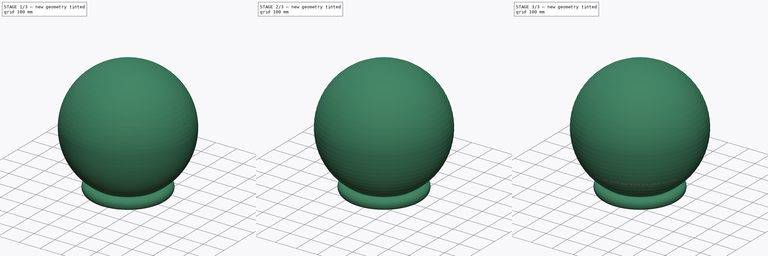
[diagram: build sequence overview — one tinted view per stage of 3, left to right]
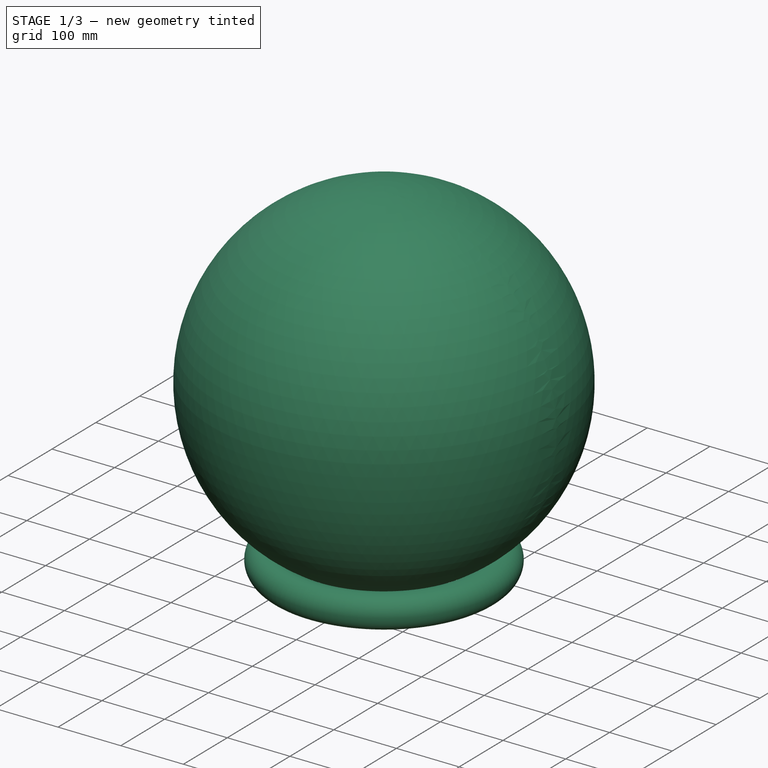
[diagram: stage 1 of 3 — iso view after this stage's code; geometry added in this stage tinted green]
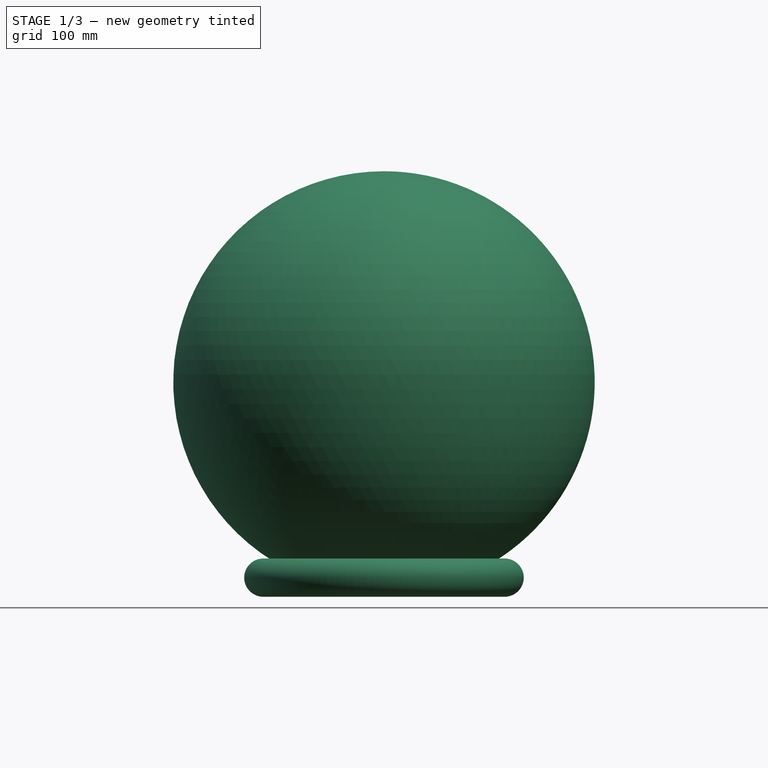
[diagram: stage 1 of 3 — front view after this stage's code; geometry added in this stage tinted green]
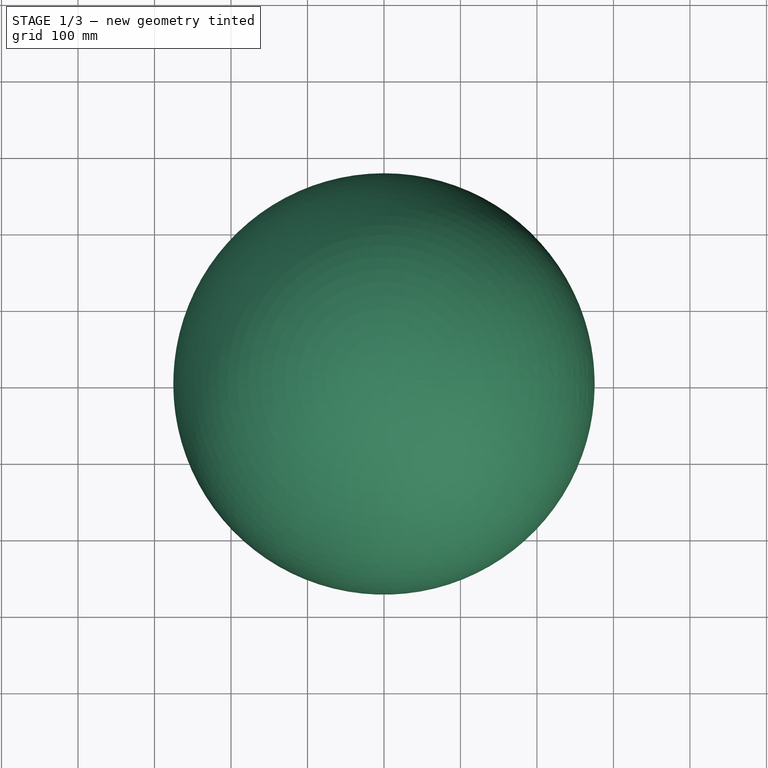
[diagram: stage 1 of 3 — top view after this stage's code; geometry added in this stage tinted green]
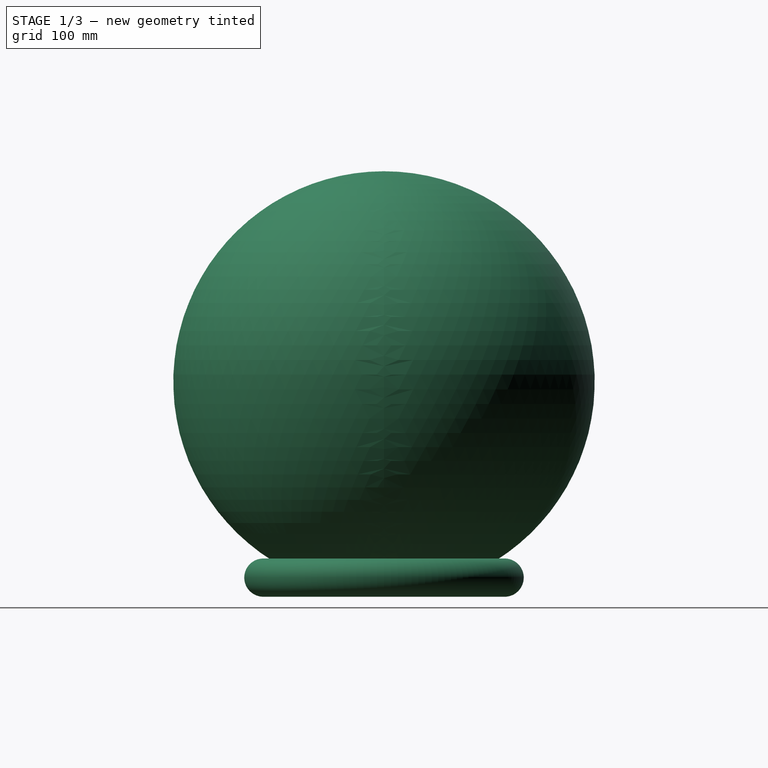
[diagram: stage 1 of 3 — right view after this stage's code; geometry added in this stage tinted green]
FCSTD DOCUMENT  (FreeCAD 1.0R39109 (Git))
Label: balanceball
License: All rights reserved
LicenseURL: https://en.wikipedia.org/wiki/All_rights_reserved
objects: Sketcher::SketchObject×4, PartDesign::Body×3, PartDesign::AdditiveSphere×2, PartDesign::Plane×2, App::Part×2, PartDesign::Pad×1, Part::MultiCommon×1, PartDesign::ShapeBinder×1, PartDesign::AdditivePipe×1, Part::MultiFuse×1, Part::FeaturePython×1
note: 29 computed .brp shape members not serialized (recipe doc carries the construction recipe); baked Part::Feature solids carry a one-line shape summary decoded from their .brp

FEATURE [PartDesign::Body] Body
  AllowCompound = false
  Group = -> [Sphere,Sketch,Pad]
  Origin = -> Origin
  Tip = -> Pad
FEATURE [PartDesign::AdditiveSphere] Sphere001
  Angle1 = -90
  Angle2 = 90
  Angle3 = 360
  AttacherType = Attacher::AttachEngine3D
  Radius = 275.5
  Refine = true
  Suppressed = false
FEATURE [PartDesign::ShapeBinder] CopyCommon
  TraceSupport = false
FEATURE [Sketcher::SketchObject] Sketch001
  ArcFitTolerance = 1e-06
  AttachmentSupport = -> [XZ_Plane002]
  ExternalGeometry = -> [CopyCommon]
  FullyConstrained = false
  MakeInternals = false
  MapMode = 5
  Placement = pos=(0,0,0) rot=(1,0,0;1.5708rad)
  sketch-geometry (2):
    g0: Circle CenterX=-157.732 CenterY=-255.772 CenterZ=0 NormalX=0 NormalY=0 NormalZ=1 AngleXU=0 Radius=25
    g1: LineSegment StartX=-144.873 StartY=-234.333 StartZ=0 EndX=-157.732 EndY=-255.772 EndZ=0
  constraints (4):
    c: PointOnObject(g-3,g0)
    c: Radius(g0) = 25
    c: Coincident(g1,g-3)
    c: Coincident(g1,g0)
FEATURE [PartDesign::Plane] DatumPlane
  AttachmentSupport = -> [Sketch001]
  Length = 438.471
  MapMode = 1
  Placement = pos=(-157.732,-5.68e-14,-255.772) rot=(0,0,1;0rad)
  ResizeMode = 0
  Width = 438.506
FEATURE [Sketcher::SketchObject] Sketch002
  ArcFitTolerance = 1e-06
  AttachmentSupport = -> [DatumPlane]
  ExternalGeometry = -> [CopyCommon]
  FullyConstrained = true
  MakeInternals = false
  MapMode = 5
  Placement = pos=(-157.732,-5.68e-14,-255.772) rot=(0,0,1;0rad)
  sketch-geometry (1):
    g0: Circle CenterX=157.732 CenterY=4.8e-15 CenterZ=0 NormalX=0 NormalY=0 NormalZ=1 AngleXU=0 Radius=157.732
  constraints (2):
    c: Coincident(g0,g-3)
    c: PointOnObject(g-1,g0)
FEATURE [PartDesign::Plane] DatumPlane001
  AttachmentSupport = -> [Sketch001]
  Length = 372.613
  MapMode = 11
  Placement = pos=(-157.732,-5.68e-14,-255.772) rot=(0.57735,-0.57735,0.57735;2.0944rad)
  ResizeMode = 0
  Width = 432.239
FEATURE [Sketcher::SketchObject] Sketch003
  ArcFitTolerance = 1e-06
  AttachmentSupport = -> [DatumPlane001]
  ExternalGeometry = -> [Sketch001]
  FullyConstrained = false
  MakeInternals = false
  MapMode = 5
  Placement = pos=(-157.732,-5.68e-14,-255.772) rot=(0.57735,-0.57735,0.57735;2.0944rad)
  sketch-geometry (1):
    g0: Circle CenterX=0 CenterY=0 CenterZ=0 NormalX=0 NormalY=0 NormalZ=1 AngleXU=0 Radius=25
  constraints (1):
    c: Coincident(g0,g-1)
FEATURE [PartDesign::AdditivePipe] AdditivePipe
  AuxilleryCurvelinear = true
  AuxillerySpineTangent = false
  Binormal = (0,0,0)
  Mode = 0
  Placement = pos=(-157.732,-5.68e-14,-255.772) rot=(0.57735,-0.57735,0.57735;2.0944rad)
  Profile = -> Sketch003
  Refine = true
  Spine = -> Sketch002
  SpineTangent = false
  Suppressed = false
  Transformation = 0
  Transition = 0
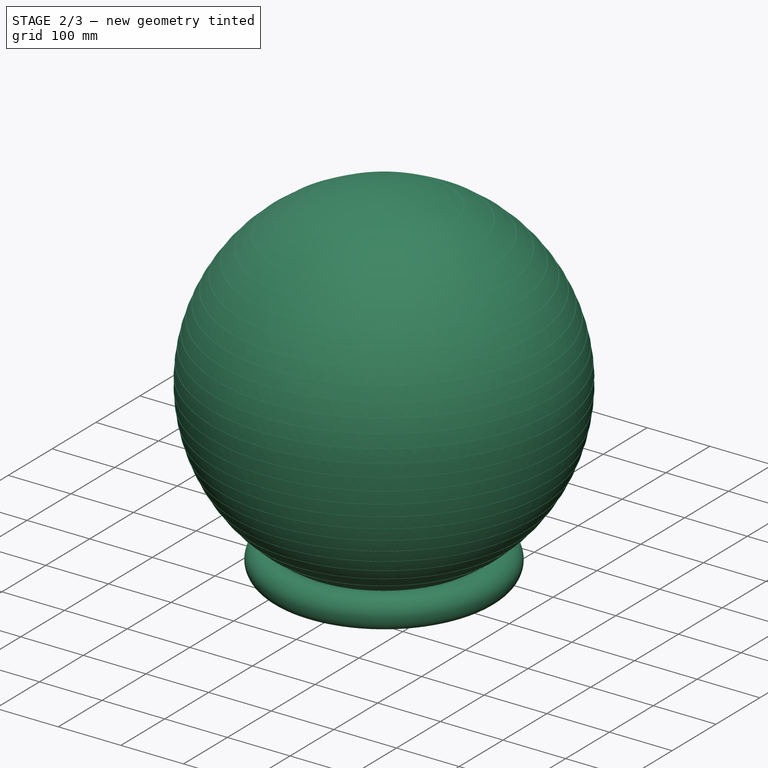
[diagram: stage 2 of 3 — iso view after this stage's code; geometry added in this stage tinted green]
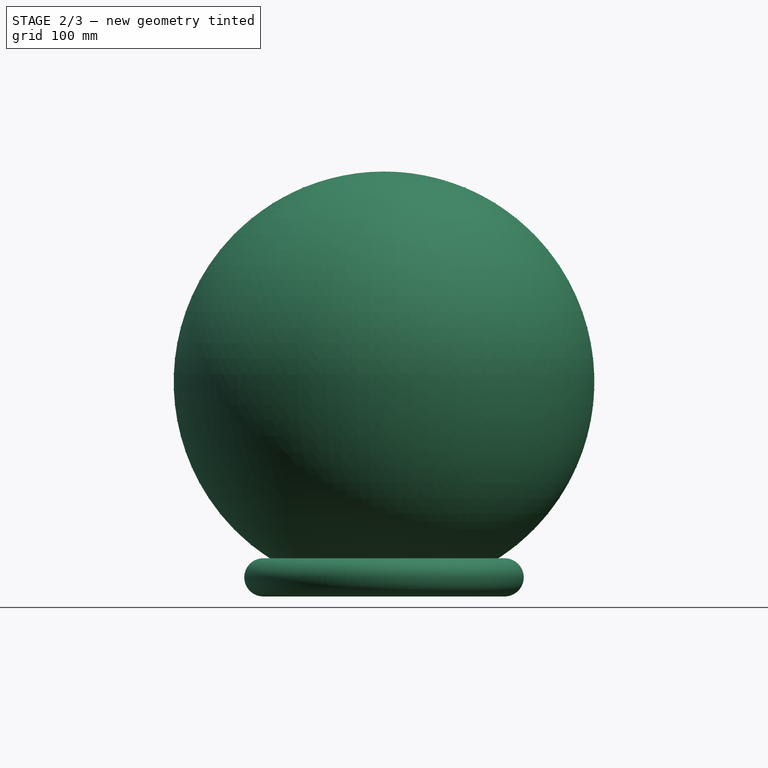
[diagram: stage 2 of 3 — front view after this stage's code; geometry added in this stage tinted green]
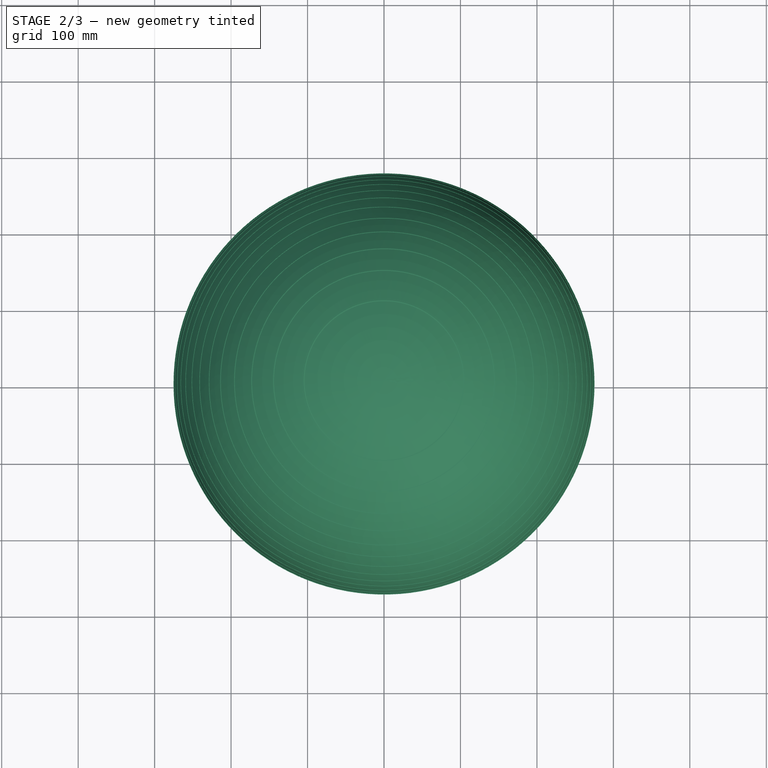
[diagram: stage 2 of 3 — top view after this stage's code; geometry added in this stage tinted green]
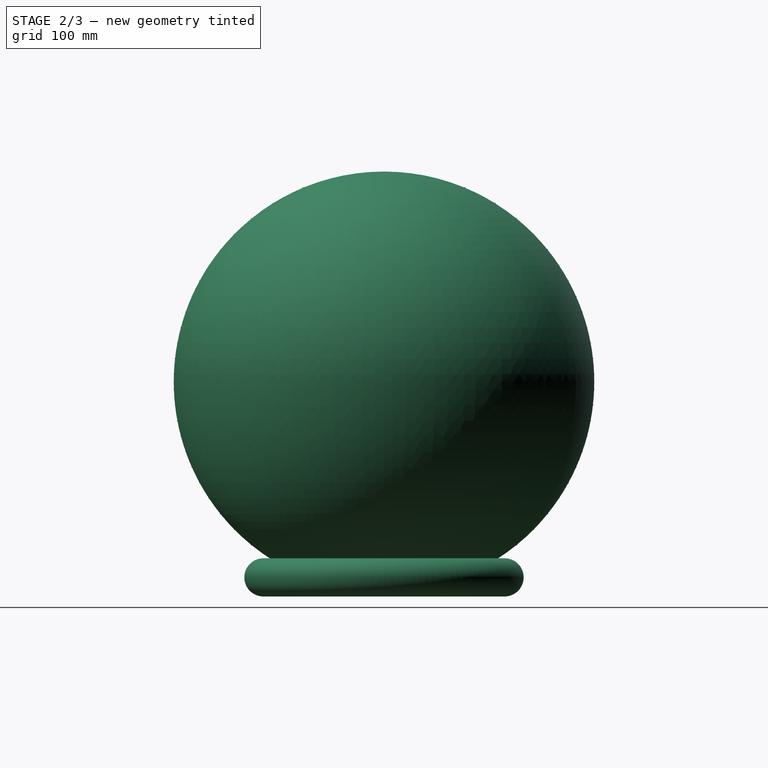
[diagram: stage 2 of 3 — right view after this stage's code; geometry added in this stage tinted green]
FEATURE [PartDesign::AdditiveSphere] Sphere
  Angle1 = -90
  Angle2 = 90
  Angle3 = 360
  AttacherType = Attacher::AttachEngine3D
  Radius = 275
  Refine = true
  Suppressed = false
FEATURE [Sketcher::SketchObject] Sketch
  ArcFitTolerance = 1e-06
  AttachmentSupport = -> [XZ_Plane]
  ExternalGeometry = -> [Sphere]
  FullyConstrained = false
  MakeInternals = false
  MapMode = 5
  Placement = pos=(0,0,0) rot=(1,0,0;1.5708rad)
  sketch-geometry (131):
    g0: LineSegment StartX=-291.447 StartY=9.66667 StartZ=0 EndX=-291.447 EndY=10.6667 EndZ=0
    g1: LineSegment StartX=-291.447 StartY=10.6667 StartZ=0 EndX=291.447 EndY=10.6667 EndZ=0
    g2: LineSegment StartX=291.447 StartY=10.6667 StartZ=0 EndX=291.447 EndY=9.66667 EndZ=0
    g3: LineSegment StartX=291.447 StartY=9.66667 StartZ=0 EndX=-291.447 EndY=9.66667 EndZ=0
    g4: LineSegment StartX=-280.491 StartY=30 StartZ=0 EndX=-280.491 EndY=31 EndZ=0
    g5: LineSegment StartX=-280.491 StartY=31 StartZ=0 EndX=280.491 EndY=31 EndZ=0
    g6: LineSegment StartX=280.491 StartY=31 StartZ=0 EndX=280.491 EndY=30 EndZ=0
    g7: LineSegment StartX=280.491 StartY=30 StartZ=0 EndX=-280.491 EndY=30 EndZ=0
    g8: LineSegment StartX=282.77 StartY=51.3333 StartZ=0 EndX=282.77 EndY=50.3333 EndZ=0
    g9: LineSegment StartX=282.77 StartY=50.3333 StartZ=0 EndX=-282.77 EndY=50.3333 EndZ=0
    g10: LineSegment StartX=-282.77 StartY=50.3333 StartZ=0 EndX=-282.77 EndY=51.3333 EndZ=0
    g11: LineSegment StartX=-282.77 StartY=51.3333 StartZ=0 EndX=282.77 EndY=51.3333 EndZ=0
    g12: LineSegment StartX=-276.996 StartY=70.6667 StartZ=0 EndX=-276.996 EndY=71.6667 EndZ=0
    g13: LineSegment StartX=-276.996 StartY=71.6667 StartZ=0 EndX=276.996 EndY=71.6667 EndZ=0
    g14: LineSegment StartX=276.996 StartY=71.6667 StartZ=0 EndX=276.996 EndY=70.6667 EndZ=0
    g15: LineSegment StartX=276.996 StartY=70.6667 StartZ=0 EndX=-276.996 EndY=70.6667 EndZ=0
    g16: LineSegment StartX=271.883 StartY=91 StartZ=0 EndX=-271.883 EndY=91 EndZ=0
    g17: LineSegment StartX=-271.883 StartY=91 StartZ=0 EndX=-271.883 EndY=92 EndZ=0
    g18: LineSegment StartX=-271.883 StartY=92 StartZ=0 EndX=271.883 EndY=92 EndZ=0
    g19: LineSegment StartX=271.883 StartY=92 StartZ=0 EndX=271.883 EndY=91 EndZ=0
    g20: LineSegment StartX=-264.412 StartY=112.333 StartZ=0 EndX=264.412 EndY=112.333 EndZ=0
    g21: LineSegment StartX=264.412 StartY=112.333 StartZ=0 EndX=264.412 EndY=111.333 EndZ=0
    g22: LineSegment StartX=264.412 StartY=111.333 StartZ=0 EndX=-264.412 EndY=111.333 EndZ=0
    g23: LineSegment StartX=-264.412 StartY=111.333 StartZ=0 EndX=-264.412 EndY=112.333 EndZ=0
    g24: LineSegment StartX=256.154 StartY=132.667 StartZ=0 EndX=256.154 EndY=131.667 EndZ=0
    g25: LineSegment StartX=256.154 StartY=131.667 StartZ=0 EndX=-256.154 EndY=131.667 EndZ=0
    g26: LineSegment StartX=-256.154 StartY=131.667 StartZ=0 EndX=-256.154 EndY=132.667 EndZ=0
    g27: LineSegment StartX=-256.154 StartY=132.667 StartZ=0 EndX=256.154 EndY=132.667 EndZ=0
    g28: LineSegment StartX=-246.008 StartY=153 StartZ=0 EndX=246.008 EndY=153 EndZ=0
    g29: LineSegment StartX=246.008 StartY=153 StartZ=0 EndX=246.008 EndY=152 EndZ=0
    g30: LineSegment StartX=246.008 StartY=152 StartZ=0 EndX=-246.008 EndY=152 EndZ=0
    g31: LineSegment StartX=-246.008 StartY=152 StartZ=0 EndX=-246.008 EndY=153 EndZ=0
    g32: LineSegment StartX=237.302 StartY=173.333 StartZ=0 EndX=237.302 EndY=172.333 EndZ=0
    g33: LineSegment StartX=237.302 StartY=172.333 StartZ=0 EndX=-237.302 EndY=172.333 EndZ=0
    g34: LineSegment StartX=-237.302 StartY=172.333 StartZ=0 EndX=-237.302 EndY=173.333 EndZ=0
    g35: LineSegment StartX=-237.302 StartY=173.333 StartZ=0 EndX=237.302 EndY=173.333 EndZ=0
    g36: LineSegment StartX=-221.839 StartY=192.667 StartZ=0 EndX=-221.839 EndY=193.667 EndZ=0
    g37: LineSegment StartX=-221.839 StartY=193.667 StartZ=0 EndX=221.839 EndY=193.667 EndZ=0
    g38: LineSegment StartX=221.839 StartY=193.667 StartZ=0 EndX=221.839 EndY=192.667 EndZ=0
    g39: LineSegment StartX=221.839 StartY=192.667 StartZ=0 EndX=-221.839 EndY=192.667 EndZ=0
    g40: LineSegment StartX=212.405 StartY=214 StartZ=0 EndX=212.405 EndY=213 EndZ=0
    g41: LineSegment StartX=212.405 StartY=213 StartZ=0 EndX=-212.405 EndY=213 EndZ=0
    g42: LineSegment StartX=-212.405 StartY=213 StartZ=0 EndX=-212.405 EndY=214 EndZ=0
    g43: LineSegment StartX=-212.405 StartY=214 StartZ=0 EndX=212.405 EndY=214 EndZ=0
    g44: LineSegment StartX=-195.863 StartY=234.333 StartZ=0 EndX=195.863 EndY=234.333 EndZ=0
    g45: LineSegment StartX=195.863 StartY=234.333 StartZ=0 EndX=195.863 EndY=233.333 EndZ=0
    g46: LineSegment StartX=195.863 StartY=233.333 StartZ=0 EndX=-195.863 EndY=233.333 EndZ=0
    g47: LineSegment StartX=-195.863 StartY=233.333 StartZ=0 EndX=-195.863 EndY=234.333 EndZ=0
    g48: LineSegment StartX=184.098 StartY=254.667 StartZ=0 EndX=184.098 EndY=253.667 EndZ=0
    g49: LineSegment StartX=184.098 StartY=253.667 StartZ=0 EndX=-184.098 EndY=253.667 EndZ=0
    g50: LineSegment StartX=-184.098 StartY=253.667 StartZ=0 EndX=-184.098 EndY=254.667 EndZ=0
    g51: LineSegment StartX=-184.098 StartY=254.667 StartZ=0 EndX=184.098 EndY=254.667 EndZ=0
    g52: LineSegment StartX=-283.15 StartY=-10.6667 StartZ=0 EndX=-283.15 EndY=-9.66667 EndZ=0
    g53: LineSegment StartX=-283.15 StartY=-9.66667 StartZ=0 EndX=283.15 EndY=-9.66667 EndZ=0
    g54: LineSegment StartX=283.15 StartY=-9.66667 StartZ=0 EndX=283.15 EndY=-10.6667 EndZ=0
    g55: LineSegment StartX=283.15 StartY=-10.6667 StartZ=0 EndX=-283.15 EndY=-10.6667 EndZ=0
    g56: LineSegment StartX=285.733 StartY=-31 StartZ=0 EndX=-285.733 EndY=-31 EndZ=0
    g57: LineSegment StartX=-285.733 StartY=-31 StartZ=0 EndX=-285.733 EndY=-30 EndZ=0
    g58: LineSegment StartX=-285.733 StartY=-30 StartZ=0 EndX=285.733 EndY=-30 EndZ=0
    g59: LineSegment StartX=285.733 StartY=-30 StartZ=0 EndX=285.733 EndY=-31 EndZ=0
    g60: LineSegment StartX=-283.692 StartY=-51.3333 StartZ=0 EndX=-283.692 EndY=-50.3333 EndZ=0
    g61: LineSegment StartX=-283.692 StartY=-50.3333 StartZ=0 EndX=283.692 EndY=-50.3333 EndZ=0
    g62: LineSegment StartX=283.692 StartY=-50.3333 StartZ=0 EndX=283.692 EndY=-51.3333 EndZ=0
    g63: LineSegment StartX=283.692 StartY=-51.3333 StartZ=0 EndX=-283.692 EndY=-51.3333 EndZ=0
    g64: LineSegment StartX=278.903 StartY=-71.6667 StartZ=0 EndX=-278.903 EndY=-71.6667 EndZ=0
    g65: LineSegment StartX=-278.903 StartY=-71.6667 StartZ=0 EndX=-278.903 EndY=-70.6667 EndZ=0
    g66: LineSegment StartX=-278.903 StartY=-70.6667 StartZ=0 EndX=278.903 EndY=-70.6667 EndZ=0
    g67: LineSegment StartX=278.903 StartY=-70.6667 StartZ=0 EndX=278.903 EndY=-71.6667 EndZ=0
    g68: LineSegment StartX=-269.142 StartY=-92 StartZ=0 EndX=-269.142 EndY=-91 EndZ=0
    g69: LineSegment StartX=-269.142 StartY=-91 StartZ=0 EndX=269.142 EndY=-91 EndZ=0
    g70: LineSegment StartX=269.142 StartY=-91 StartZ=0 EndX=269.142 EndY=-92 EndZ=0
    g71: LineSegment StartX=269.142 StartY=-92 StartZ=0 EndX=-269.142 EndY=-92 EndZ=0
    g72: LineSegment StartX=260.857 StartY=-112.333 StartZ=0 EndX=-260.857 EndY=-112.333 EndZ=0
    g73: LineSegment StartX=-260.857 StartY=-112.333 StartZ=0 EndX=-260.857 EndY=-111.333 EndZ=0
    g74: LineSegment StartX=-260.857 StartY=-111.333 StartZ=0 EndX=260.857 EndY=-111.333 EndZ=0
    g75: LineSegment StartX=260.857 StartY=-111.333 StartZ=0 EndX=260.857 EndY=-112.333 EndZ=0
    g76: LineSegment StartX=-246.128 StartY=-132.667 StartZ=0 EndX=-246.128 EndY=-131.667 EndZ=0
    g77: LineSegment StartX=-246.128 StartY=-131.667 StartZ=0 EndX=246.128 EndY=-131.667 EndZ=0
    g78: LineSegment StartX=246.128 StartY=-131.667 StartZ=0 EndX=246.128 EndY=-132.667 EndZ=0
    g79: LineSegment StartX=246.128 StartY=-132.667 StartZ=0 EndX=-246.128 EndY=-132.667 EndZ=0
    g80: LineSegment StartX=237.57 StartY=-153 StartZ=0 EndX=-237.57 EndY=-153 EndZ=0
    g81: LineSegment StartX=-237.57 StartY=-153 StartZ=0 EndX=-237.57 EndY=-152 EndZ=0
    g82: LineSegment StartX=-237.57 StartY=-152 StartZ=0 EndX=237.57 EndY=-152 EndZ=0
    g83: LineSegment StartX=237.57 StartY=-152 StartZ=0 EndX=237.57 EndY=-153 EndZ=0
    g84: LineSegment StartX=-225.124 StartY=-173.333 StartZ=0 EndX=-225.124 EndY=-172.333 EndZ=0
    g85: LineSegment StartX=-225.124 StartY=-172.333 StartZ=0 EndX=225.124 EndY=-172.333 EndZ=0
    g86: LineSegment StartX=225.124 StartY=-172.333 StartZ=0 EndX=225.124 EndY=-173.333 EndZ=0
    g87: LineSegment StartX=225.124 StartY=-173.333 StartZ=0 EndX=-225.124 EndY=-173.333 EndZ=0
    g88: LineSegment StartX=209.157 StartY=-193.667 StartZ=0 EndX=-209.157 EndY=-193.667 EndZ=0
    g89: LineSegment StartX=-209.157 StartY=-193.667 StartZ=0 EndX=-209.157 EndY=-192.667 EndZ=0
    g90: LineSegment StartX=-209.157 StartY=-192.667 StartZ=0 EndX=209.157 EndY=-192.667 EndZ=0
    g91: LineSegment StartX=209.157 StartY=-192.667 StartZ=0 EndX=209.157 EndY=-193.667 EndZ=0
    g92: LineSegment StartX=-190.627 StartY=-214 StartZ=0 EndX=-190.627 EndY=-213 EndZ=0
    g93: LineSegment StartX=-190.627 StartY=-213 StartZ=0 EndX=190.627 EndY=-213 EndZ=0
    g94: LineSegment StartX=190.627 StartY=-213 StartZ=0 EndX=190.627 EndY=-214 EndZ=0
    g95: LineSegment StartX=190.627 StartY=-214 StartZ=0 EndX=-190.627 EndY=-214 EndZ=0
    g96: LineSegment StartX=-172.023 StartY=-234.333 StartZ=0 EndX=-172.023 EndY=-233.333 EndZ=0
    g97: LineSegment StartX=-172.023 StartY=-233.333 StartZ=0 EndX=172.023 EndY=-233.333 EndZ=0
    g98: LineSegment StartX=172.023 StartY=-233.333 StartZ=0 EndX=172.023 EndY=-234.333 EndZ=0
    g99: LineSegment StartX=172.023 StartY=-234.333 StartZ=0 EndX=-172.023 EndY=-234.333 EndZ=0
    g100: LineSegment StartX=-150.671 StartY=-254.667 StartZ=0 EndX=-150.671 EndY=-253.667 EndZ=0
    g101: LineSegment StartX=-150.671 StartY=-253.667 StartZ=0 EndX=150.671 EndY=-253.667 EndZ=0
    g102: LineSegment StartX=150.671 StartY=-253.667 StartZ=0 EndX=150.671 EndY=-254.667 EndZ=0
    g103: LineSegment StartX=150.671 StartY=-254.667 StartZ=0 EndX=-150.671 EndY=-254.667 EndZ=0
    g104: LineSegment [constr] StartX=8.42e-14 StartY=275 StartZ=0 EndX=8.42e-14 EndY=253.667 EndZ=0
    g105: LineSegment [constr] StartX=7.37e-14 StartY=254.667 StartZ=0 EndX=7.37e-14 EndY=233.333 EndZ=0
    g106: LineSegment [constr] StartX=6.83e-14 StartY=234.333 StartZ=0 EndX=6.83e-14 EndY=213 EndZ=0
    g107: LineSegment [constr] StartX=9.01e-14 StartY=214 StartZ=0 EndX=9.01e-14 EndY=192.667 EndZ=0
    g108: LineSegment [constr] StartX=7.41e-14 StartY=193.667 StartZ=0 EndX=7.41e-14 EndY=172.333 EndZ=0
    g109: LineSegment [constr] StartX=8.64e-14 StartY=173.333 StartZ=0 EndX=8.64e-14 EndY=152 EndZ=0
    g110: LineSegment [constr] StartX=8.72e-14 StartY=153 StartZ=0 EndX=8.72e-14 EndY=131.667 EndZ=0
    g111: LineSegment [constr] StartX=1.192e-13 StartY=132.667 StartZ=0 EndX=1.192e-13 EndY=111.333 EndZ=0
    g112: LineSegment [constr] StartX=1.25e-13 StartY=112.333 StartZ=0 EndX=1.25e-13 EndY=91 EndZ=0
    g113: LineSegment [constr] StartX=1.363e-13 StartY=92 StartZ=0 EndX=1.363e-13 EndY=70.6667 EndZ=0
    g114: LineSegment [constr] StartX=1.131e-13 StartY=71.6667 StartZ=0 EndX=1.131e-13 EndY=50.3333 EndZ=0
    g115: LineSegment [constr] StartX=8.7e-14 StartY=51.3333 StartZ=0 EndX=8.7e-14 EndY=30 EndZ=0
    g116: LineSegment [constr] StartX=1.326e-13 StartY=31 StartZ=0 EndX=1.326e-13 EndY=9.66667 EndZ=0
    g117: LineSegment [constr] StartX=9.7e-14 StartY=10.6667 StartZ=0 EndX=9.7e-14 EndY=-10.6667 EndZ=0
    g118: LineSegment [constr] StartX=1.219e-13 StartY=-9.66667 StartZ=0 EndX=1.219e-13 EndY=-31 EndZ=0
    g119: LineSegment [constr] StartX=8.3e-14 StartY=-30 StartZ=0 EndX=8.3e-14 EndY=-51.3333 EndZ=0
    g120: LineSegment [constr] StartX=9.47e-14 StartY=-50.3333 StartZ=0 EndX=9.47e-14 EndY=-71.6667 EndZ=0
    g121: LineSegment [constr] StartX=1.138e-13 StartY=-70.6667 StartZ=0 EndX=1.138e-13 EndY=-92 EndZ=0
    g122: LineSegment [constr] StartX=1.058e-13 StartY=-91 StartZ=0 EndX=1.058e-13 EndY=-112.333 EndZ=0
    g123: LineSegment [constr] StartX=1.327e-13 StartY=-111.333 StartZ=0 EndX=1.327e-13 EndY=-132.667 EndZ=0
    g124: LineSegment [constr] StartX=1.275e-13 StartY=-131.667 StartZ=0 EndX=1.275e-13 EndY=-153 EndZ=0
    g125: LineSegment [constr] StartX=1.325e-13 StartY=-152 StartZ=0 EndX=1.325e-13 EndY=-173.333 EndZ=0
    g126: LineSegment [constr] StartX=1.362e-13 StartY=-172.333 StartZ=0 EndX=1.362e-13 EndY=-193.667 EndZ=0
    g127: LineSegment [constr] StartX=1.246e-13 StartY=-192.667 StartZ=0 EndX=1.246e-13 EndY=-214 EndZ=0
    g128: LineSegment [constr] StartX=1.449e-13 StartY=-213 StartZ=0 EndX=1.449e-13 EndY=-234.333 EndZ=0
    g129: LineSegment [constr] StartX=1.405e-13 StartY=-233.333 StartZ=0 EndX=1.405e-13 EndY=-254.667 EndZ=0
    g130: LineSegment [constr] StartX=1.48e-13 StartY=-253.667 StartZ=0 EndX=-5.05e-14 EndY=-275 EndZ=0
  constraints (340):
    c: Coincident(g0,g1)
    c: Coincident(g1,g2)
    c: Coincident(g2,g3)
    c: Coincident(g3,g0)
    c: Vertical(g0)
    c: Vertical(g2)
    c: Horizontal(g1)
    c: Horizontal(g3)
    c: Coincident(g4,g5)
    c: Coincident(g5,g6)
    c: Coincident(g6,g7)
    c: Coincident(g7,g4)
    c: Vertical(g4)
    c: Vertical(g6)
    c: Horizontal(g5)
    c: Horizontal(g7)
    c: Coincident(g8,g9)
    c: Coincident(g9,g10)
    c: Coincident(g10,g11)
    c: Coincident(g11,g8)
    c: Vertical(g8)
    c: Vertical(g10)
    c: Horizontal(g9)
    c: Horizontal(g11)
    c: Coincident(g12,g13)
    c: Coincident(g13,g14)
    c: Coincident(g14,g15)
    c: Coincident(g15,g12)
    c: Vertical(g12)
    c: Vertical(g14)
    c: Horizontal(g13)
    c: Horizontal(g15)
    c: Coincident(g16,g17)
    c: Coincident(g17,g18)
    c: Coincident(g18,g19)
    c: Coincident(g19,g16)
    c: Horizontal(g16)
    c: Horizontal(g18)
    c: Vertical(g17)
    c: Vertical(g19)
    c: Coincident(g20,g21)
    c: Coincident(g21,g22)
    c: Coincident(g22,g23)
    c: Coincident(g23,g20)
    c: Horizontal(g20)
    c: Horizontal(g22)
    c: Vertical(g21)
    c: Vertical(g23)
    c: Coincident(g24,g25)
    c: Coincident(g25,g26)
    c: Coincident(g26,g27)
    c: Coincident(g27,g24)
    c: Vertical(g24)
    c: Vertical(g26)
    c: Horizontal(g25)
    c: Horizontal(g27)
    c: Coincident(g28,g29)
    c: Coincident(g29,g30)
    c: Coincident(g30,g31)
    c: Coincident(g31,g28)
    c: Horizontal(g28)
    c: Horizontal(g30)
    c: Vertical(g29)
    c: Vertical(g31)
    c: Coincident(g32,g33)
    c: Coincident(g33,g34)
    c: Coincident(g34,g35)
    c: Coincident(g35,g32)
    c: Vertical(g32)
    c: Vertical(g34)
    c: Horizontal(g33)
    c: Horizontal(g35)
    c: Coincident(g36,g37)
    c: Coincident(g37,g38)
    c: Coincident(g38,g39)
    c: Coincident(g39,g36)
    c: Vertical(g36)
    c: Vertical(g38)
    c: Horizontal(g37)
    c: Horizontal(g39)
    c: Coincident(g40,g41)
    c: Coincident(g41,g42)
    c: Coincident(g42,g43)
    c: Coincident(g43,g40)
    c: Vertical(g40)
    c: Vertical(g42)
    c: Horizontal(g41)
    c: Horizontal(g43)
    c: Coincident(g44,g45)
    c: Coincident(g45,g46)
    c: Coincident(g46,g47)
    c: Coincident(g47,g44)
    c: Horizontal(g44)
    c: Horizontal(g46)
    c: Vertical(g45)
    c: Vertical(g47)
    c: Coincident(g48,g49)
    c: Coincident(g49,g50)
    c: Coincident(g50,g51)
    c: Coincident(g51,g48)
    c: Vertical(g48)
    c: Vertical(g50)
    c: Horizontal(g49)
    c: Horizontal(g51)
    c: Coincident(g52,g53)
    c: Coincident(g53,g54)
    c: Coincident(g54,g55)
    c: Coincident(g55,g52)
    c: Vertical(g52)
    c: Vertical(g54)
    c: Horizontal(g53)
    c: Horizontal(g55)
    c: Coincident(g56,g57)
    c: Coincident(g57,g58)
    c: Coincident(g58,g59)
    c: Coincident(g59,g56)
    c: Horizontal(g56)
    c: Horizontal(g58)
    c: Vertical(g57)
    c: Vertical(g59)
    c: Coincident(g60,g61)
    c: Coincident(g61,g62)
    c: Coincident(g62,g63)
    c: Coincident(g63,g60)
    c: Vertical(g60)
    c: Vertical(g62)
    c: Horizontal(g61)
    c: Horizontal(g63)
    c: Coincident(g64,g65)
    c: Coincident(g65,g66)
    c: Coincident(g66,g67)
    c: Coincident(g67,g64)
    c: Horizontal(g64)
    c: Horizontal(g66)
    c: Vertical(g65)
    c: Vertical(g67)
    c: Coincident(g68,g69)
    c: Coincident(g69,g70)
    c: Coincident(g70,g71)
    c: Coincident(g71,g68)
    c: Vertical(g68)
    c: Vertical(g70)
    c: Horizontal(g69)
    c: Horizontal(g71)
    c: Coincident(g72,g73)
    c: Coincident(g73,g74)
    c: Coincident(g74,g75)
    c: Coincident(g75,g72)
    c: Horizontal(g72)
    c: Horizontal(g74)
    c: Vertical(g73)
    c: Vertical(g75)
    c: Coincident(g76,g77)
    c: Coincident(g77,g78)
    c: Coincident(g78,g79)
    c: Coincident(g79,g76)
    c: Vertical(g76)
    c: Vertical(g78)
    c: Horizontal(g77)
    c: Horizontal(g79)
    c: Coincident(g80,g81)
    c: Coincident(g81,g82)
    c: Coincident(g82,g83)
    c: Coincident(g83,g80)
    c: Horizontal(g80)
    c: Horizontal(g82)
    c: Vertical(g81)
    c: Vertical(g83)
    c: Coincident(g84,g85)
    c: Coincident(g85,g86)
    c: Coincident(g86,g87)
    c: Coincident(g87,g84)
    c: Vertical(g84)
    c: Vertical(g86)
    c: Horizontal(g85)
    c: Horizontal(g87)
    c: Coincident(g88,g89)
    c: Coincident(g89,g90)
    c: Coincident(g90,g91)
    c: Coincident(g91,g88)
    c: Horizontal(g88)
    c: Horizontal(g90)
    c: Vertical(g89)
    c: Vertical(g91)
    c: Coincident(g92,g93)
    c: Coincident(g93,g94)
    c: Coincident(g94,g95)
    c: Coincident(g95,g92)
    c: Vertical(g92)
    c: Vertical(g94)
    c: Horizontal(g93)
    c: Horizontal(g95)
    c: Coincident(g96,g97)
    c: Coincident(g97,g98)
    c: Coincident(g98,g99)
    c: Coincident(g99,g96)
    c: Vertical(g96)
    c: Vertical(g98)
    c: Horizontal(g97)
    c: Horizontal(g99)
    c: Coincident(g100,g101)
    c: Coincident(g101,g102)
    c: Coincident(g102,g103)
    c: Coincident(g103,g100)
    c: Vertical(g100)
    c: Vertical(g102)
    c: Horizontal(g101)
    c: Horizontal(g103)
    c: Equal(g50,g47)
    c: Equal(g47,g42)
    c: Equal(g42,g36)
    c: Equal(g36,g34)
    c: Equal(g34,g31)
    c: Equal(g31,g26)
    c: Equal(g26,g23)
    c: Equal(g23,g17)
    c: Equal(g17,g12)
    c: Equal(g12,g10)
    c: Equal(g10,g4)
    c: Equal(g4,g0)
    c: Equal(g0,g52)
    c: Equal(g52,g57)
    c: Equal(g57,g60)
    c: Equal(g60,g65)
    c: Equal(g65,g68)
    c: Equal(g68,g73)
    c: Equal(g73,g76)
    c: Equal(g76,g81)
    c: Equal(g81,g84)
    c: Equal(g84,g89)
    c: Equal(g89,g92)
    c: Equal(g92,g96)
    c: Equal(g96,g100)
    c: Coincident(g104,g-3)
    c: Symmetric(g49,g49,g104)
    c: Symmetric(g51,g51,g105)
    c: Symmetric(g46,g46,g105)
    c: Symmetric(g44,g44,g106)
    c: Symmetric(g41,g41,g106)
    c: Symmetric(g43,g43,g107)
    c: Symmetric(g39,g39,g107)
    c: Symmetric(g37,g37,g108)
    c: Symmetric(g33,g33,g108)
    c: Vertical(g108)
    c: Symmetric(g35,g35,g109)
    c: Symmetric(g30,g30,g109)
    c: Symmetric(g28,g28,g110)
    c: Symmetric(g25,g25,g110)
    c: Symmetric(g27,g27,g111)
    c: Symmetric(g22,g22,g111)
    c: Vertical(g111)
    c: Symmetric(g20,g20,g112)
    c: Symmetric(g16,g16,g112)
    c: Vertical(g112)
    c: Symmetric(g18,g18,g113)
    c: Symmetric(g15,g15,g113)
    c: Symmetric(g13,g13,g114)
    c: Symmetric(g9,g9,g114)
    c: Symmetric(g11,g11,g115)
    c: Symmetric(g7,g7,g115)
    c: Vertical(g115)
    c: Symmetric(g5,g5,g116)
    c: Symmetric(g3,g3,g116)
    c: Symmetric(g1,g1,g117)
    c: Symmetric(g55,g55,g117)
    c: Symmetric(g53,g53,g118)
    c: Symmetric(g56,g56,g118)
    c: Symmetric(g58,g58,g119)
    c: Symmetric(g63,g63,g119)
    c: Symmetric(g61,g61,g120)
    c: Symmetric(g64,g64,g120)
    c: Symmetric(g66,g66,g121)
    c: Symmetric(g71,g71,g121)
    c: Symmetric(g69,g69,g122)
    c: Symmetric(g72,g72,g122)
    c: Vertical(g122)
    c: Symmetric(g74,g74,g123)
    c: Symmetric(g79,g79,g123)
    c: Symmetric(g77,g77,g124)
    c: Symmetric(g80,g80,g124)
    c: Symmetric(g82,g82,g125)
    c: Symmetric(g87,g87,g125)
    c: Symmetric(g85,g85,g126)
    c: Symmetric(g88,g88,g126)
    c: Symmetric(g90,g90,g127)
    c: Symmetric(g95,g95,g127)
    c: Symmetric(g93,g93,g128)
    c: Symmetric(g99,g99,g128)
    c: Symmetric(g97,g97,g129)
    c: Symmetric(g103,g103,g129)
    c: Symmetric(g101,g101,g130)
    c: Coincident(g130,g-3)
    c: Equal(g104,g105)
    c: Equal(g105,g106)
    c: Equal(g106,g107)
    c: Equal(g107,g108)
    c: Equal(g108,g109)
    c: Equal(g109,g110)
    c: Equal(g110,g111)
    c: Equal(g111,g112)
    c: Equal(g112,g113)
    c: Equal(g113,g114)
    c: Equal(g114,g115)
    c: Equal(g115,g116)
    c: Equal(g116,g117)
    c: Equal(g117,g118)
    c: Equal(g118,g119)
    c: Equal(g119,g120)
    c: Equal(g120,g121)
    c: Equal(g121,g122)
    c: Equal(g122,g123)
    c: Equal(g123,g124)
    c: Equal(g124,g125)
    c: Equal(g125,g126)
    c: Equal(g126,g127)
    c: Equal(g127,g128)
    c: Equal(g128,g129)
    c: Equal(g129,g130)
    c: Vertical(g104)
    c: Vertical(g105)
    c: Vertical(g106)
    c: Vertical(g107)
    c: Vertical(g109)
    c: Vertical(g110)
    c: Vertical(g113)
    c: Vertical(g114)
    c: Vertical(g116)
    c: Vertical(g117)
    c: Vertical(g118)
    c: Vertical(g119)
    c: Vertical(g120)
    c: Vertical(g121)
    c: Vertical(g123)
    c: Vertical(g124)
    c: Vertical(g125)
    c: Vertical(g126)
    c: Vertical(g127)
    c: Vertical(g128)
    c: Vertical(g129)
    c: DistanceY(g50,g50) = 1
FEATURE [PartDesign::Pad] Pad
  BaseFeature = -> Sphere
  Direction = (0,-1,2e-16)
  Length = 560
  Length2 = 10
  Midplane = true
  Profile = -> Sketch
  ReferenceAxis = -> Sketch [N_Axis]
  Refine = true
  Suppressed = false
  Type = 0
FEATURE [PartDesign::Body] Body001
  AllowCompound = false
  Group = -> [Sphere001]
  Origin = -> Origin001
  Tip = -> Sphere001
FEATURE [Part::MultiCommon] Common
  Refine = true
  Shapes = -> [Body,Body001]
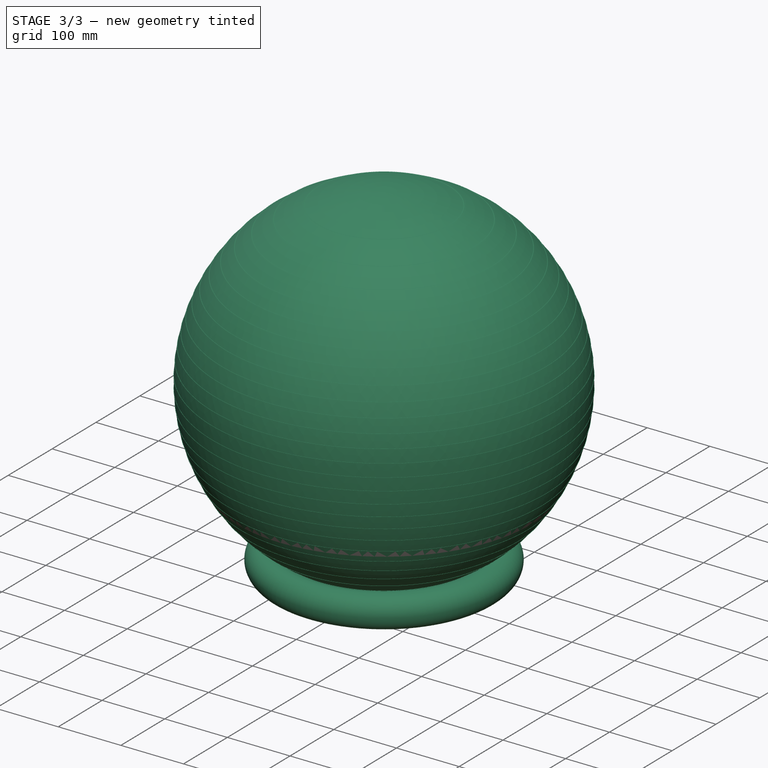
[diagram: stage 3 of 3 — iso view after this stage's code; geometry added in this stage tinted green]
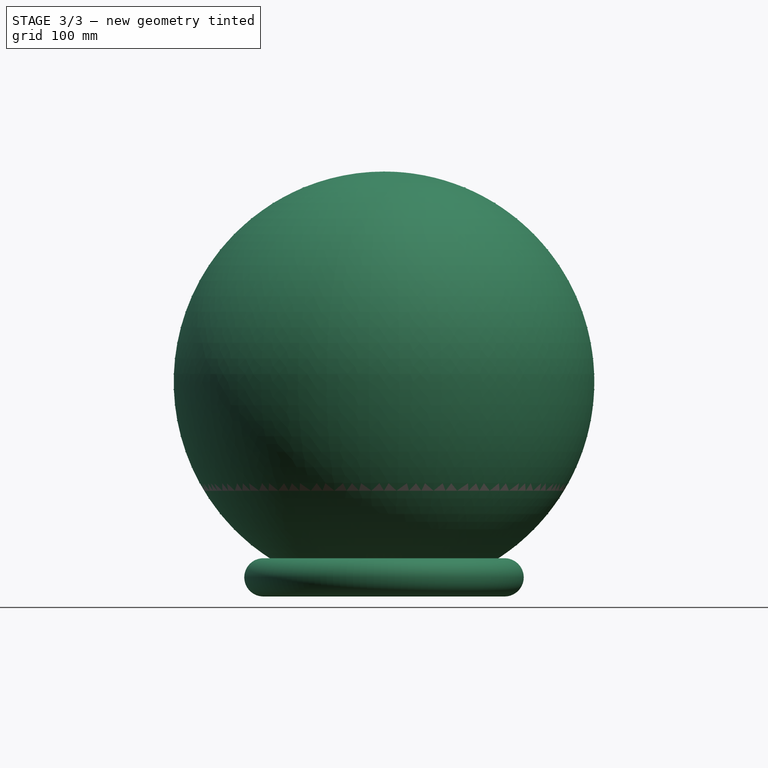
[diagram: stage 3 of 3 — front view after this stage's code; geometry added in this stage tinted green]
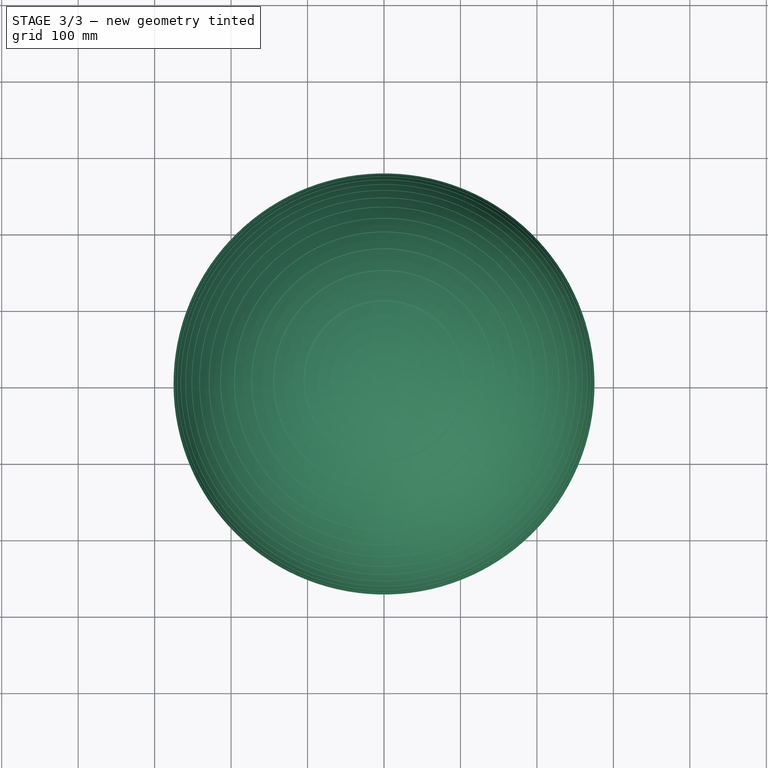
[diagram: stage 3 of 3 — top view after this stage's code; geometry added in this stage tinted green]
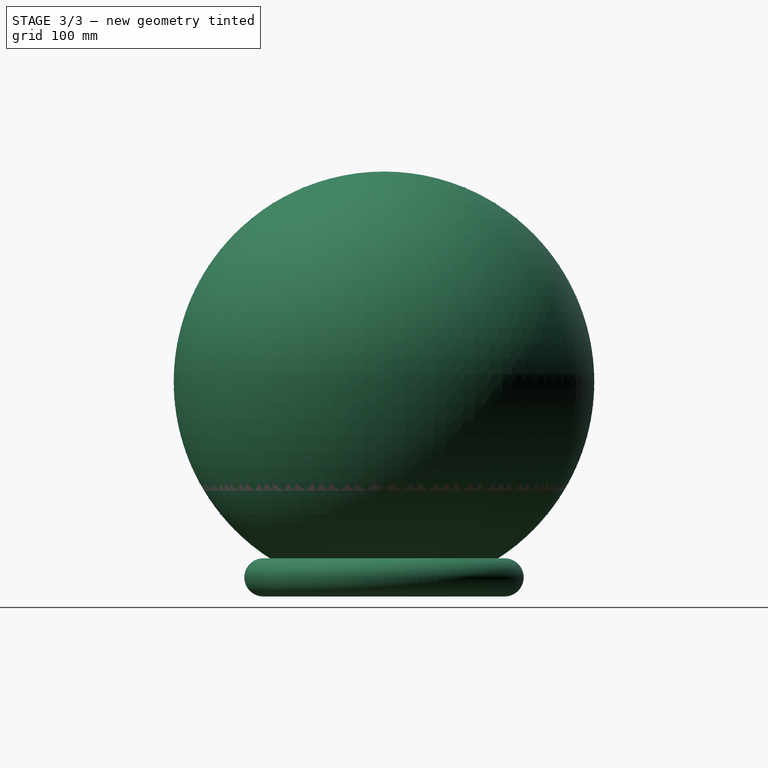
[diagram: stage 3 of 3 — right view after this stage's code; geometry added in this stage tinted green]
FEATURE [PartDesign::Body] Body002
  AllowCompound = false
  Group = -> [CopyCommon,Sketch001,DatumPlane,Sketch002,DatumPlane001,Sketch003,AdditivePipe]
  Origin = -> Origin002
  Tip = -> AdditivePipe
FEATURE [Part::MultiFuse] Fusion
  Placement = pos=(0,0,280) rot=(0,0,1;0rad)
  Refine = true
  Shapes = -> [Common,Body002]
FEATURE [App::Part] Part  label="balanceball1"
  Group = -> [Body,Body001,Common,Body002,Fusion]
  Origin = -> Origin003
  Placement = pos=(0,0,280) rot=(0,0,1;0rad)
FEATURE [Part::FeaturePython] Clone  label="balanceball_clone"  # Draft clone (typed FeaturePython)
  AttacherType = Attacher::AttachEngine3D
  Fuse = false
  Objects = -> [Part]
  Scale = (1,1,1)
FEATURE [App::Part] Part001  label="balanceball"
  Group = -> [Clone]
  Origin = -> Origin004
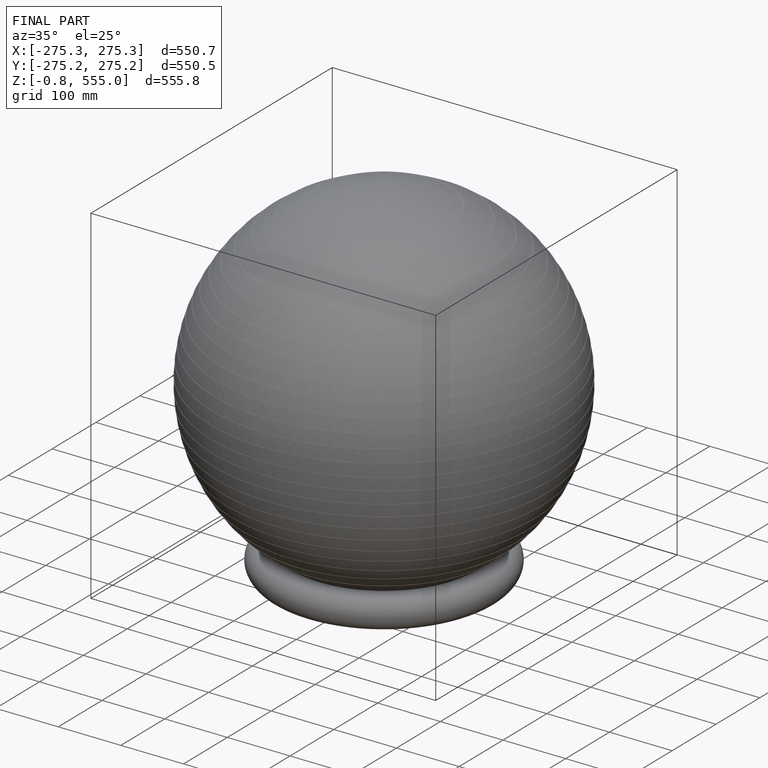
[diagram: finished part — iso view with bounding-box wireframe]
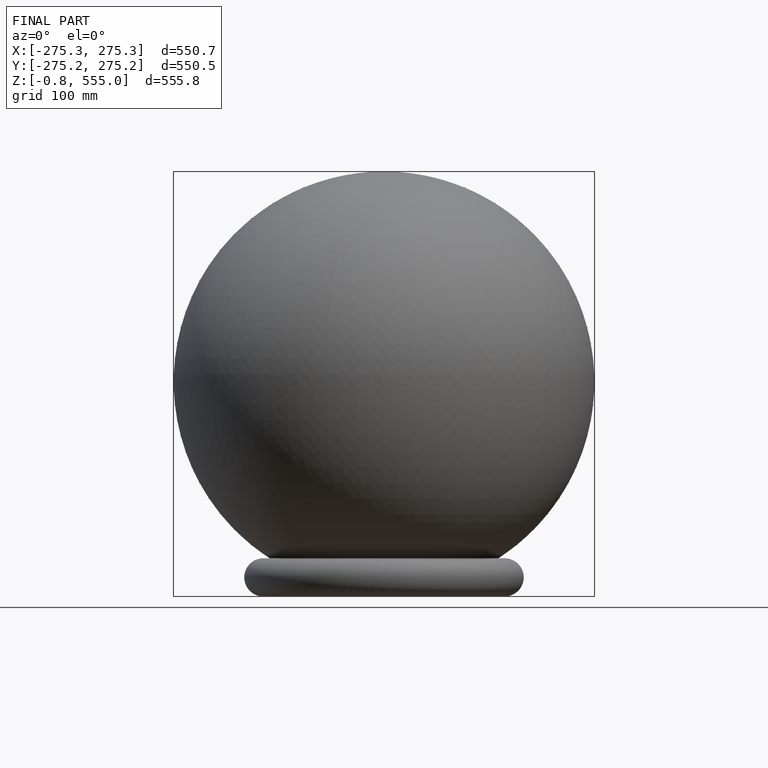
[diagram: finished part — front view with bounding-box wireframe]
